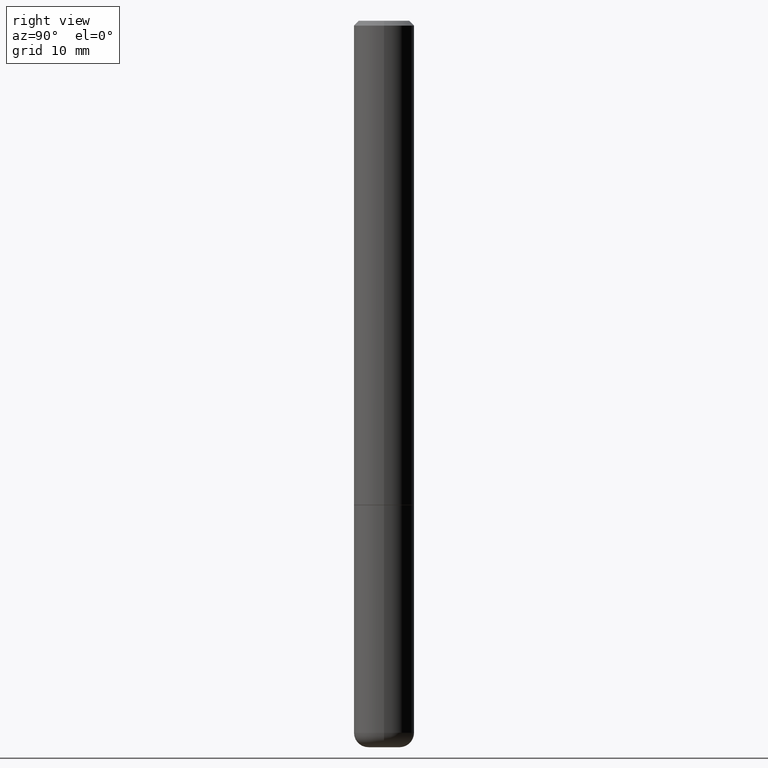
[diagram: clean part render]
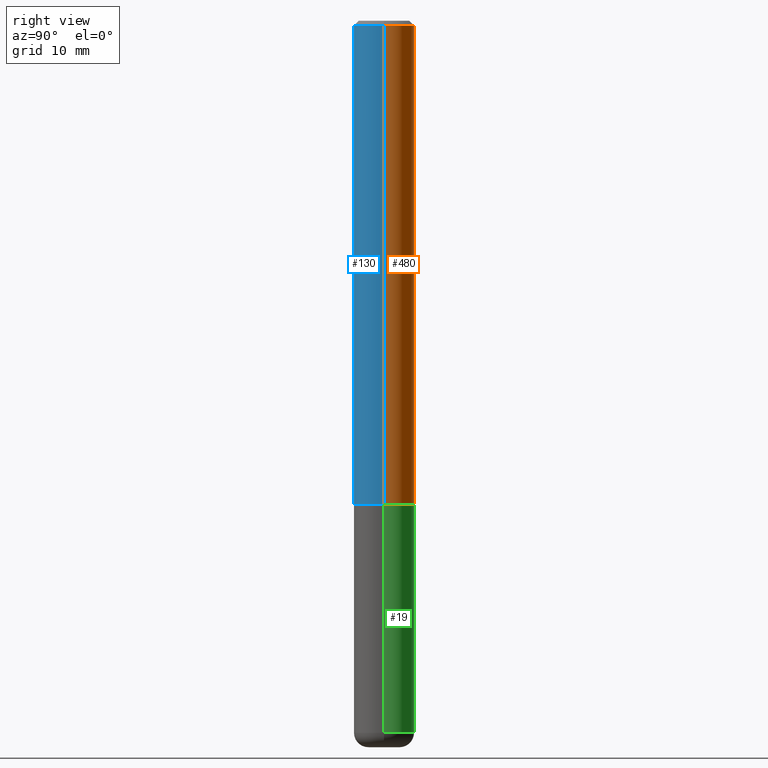
[diagram: same view with three faces highlighted in distinct colors, each labeled with its STEP entity id]
A machine part, right view with three faces highlighted in distinct colors.
Their STEP definitions:

[orange] entity #480 — the highlighted cylindrical surface (edge-blend (fillet) strip) has radius 3.175 mm, axis along (-0, 0, 1).
#12 = ORIENTED_EDGE ( 'NONE', *, *, #153, .F. ) ;
#68 = DIRECTION ( 'NONE',  ( -2.445468806185136597E-29, 3.491481338843145583E-15, 1.000000000000000000 ) ) ;
#96 = ORIENTED_EDGE ( 'NONE', *, *, #380, .T. ) ;
#97 = CARTESIAN_POINT ( 'NONE',  ( -0.1250000000000000278, -2.636471991862020635E-15, -1.999000000000000110 ) ) ;
#104 = FACE_OUTER_BOUND ( 'NONE', #243, .T. ) ;
#124 = CARTESIAN_POINT ( 'NONE',  ( 0.1249999999999993477, -9.273918764983002075E-16, -0.02000000000000009062 ) ) ;
#126 = LINE ( 'NONE', #285, #145 ) ;
#128 = CARTESIAN_POINT ( 'NONE',  ( 4.890937612370295054E-31, -6.982962677686322424E-17, -0.02000000000000009062 ) ) ;
#135 = VERTEX_POINT ( 'NONE', #346 ) ;
#140 = DIRECTION ( 'NONE',  ( 1.000000000000000000, -6.982962677686269077E-15, 0.000000000000000000 ) ) ;
#145 = VECTOR ( 'NONE', #317, 39.37007874015748143 ) ;
#153 = EDGE_CURVE ( 'NONE', #256, #296, #207, .T. ) ;
#175 = AXIS2_PLACEMENT_3D ( 'NONE', #221, #68, #140 ) ;
#207 = CIRCLE ( 'NONE', #454, 0.1249999999999993477 ) ;
#210 = VERTEX_POINT ( 'NONE', #97 ) ;
#221 = CARTESIAN_POINT ( 'NONE',  ( 4.888492143564088712E-29, -6.979471196347448158E-15, -1.999000000000000110 ) ) ;
#223 = DIRECTION ( 'NONE',  ( -2.445468806185136597E-29, 3.491481338843145583E-15, 1.000000000000000000 ) ) ;
#243 = EDGE_LOOP ( 'NONE', ( #96, #368, #12, #488 ) ) ;
#256 = VERTEX_POINT ( 'NONE', #124 ) ;
#259 = CYLINDRICAL_SURFACE ( 'NONE', #396, 0.1249999999999996947 ) ;
#261 = CARTESIAN_POINT ( 'NONE',  ( 0.000000000000000000, 0.000000000000000000, 0.000000000000000000 ) ) ;
#268 = EDGE_CURVE ( 'NONE', #210, #296, #126, .T. ) ;
#280 = DIRECTION ( 'NONE',  ( 1.000000000000000000, -6.982962677686265922E-15, 0.000000000000000000 ) ) ;
#285 = CARTESIAN_POINT ( 'NONE',  ( -0.1249999999999996947, 8.881784197001230630E-16, -6.148668862818616813E-30 ) ) ;
#296 = VERTEX_POINT ( 'NONE', #369 ) ;
#303 = LINE ( 'NONE', #489, #462 ) ;
#317 = DIRECTION ( 'NONE',  ( -2.445468806185136877E-29, 3.491481338843145188E-15, 1.000000000000000000 ) ) ;
#327 = CIRCLE ( 'NONE', #175, 0.1250000000000000278 ) ;
#346 = CARTESIAN_POINT ( 'NONE',  ( 0.1250000000000000278, -7.852341531058232286E-15, -1.999000000000000110 ) ) ;
#368 = ORIENTED_EDGE ( 'NONE', *, *, #268, .T. ) ;
#369 = CARTESIAN_POINT ( 'NONE',  ( -0.1249999999999993477, 8.030407079339155047E-16, -0.02000000000000009062 ) ) ;
#376 = DIRECTION ( 'NONE',  ( 1.000000000000000000, -6.982962677686266711E-15, 4.876176775795935793E-29 ) ) ;
#380 = EDGE_CURVE ( 'NONE', #135, #210, #327, .T. ) ;
#396 = AXIS2_PLACEMENT_3D ( 'NONE', #261, #223, #376 ) ;
#399 = DIRECTION ( 'NONE',  ( -2.445468806185136597E-29, 3.491481338843145583E-15, 1.000000000000000000 ) ) ;
#454 = AXIS2_PLACEMENT_3D ( 'NONE', #128, #399, #280 ) ;
#458 = EDGE_CURVE ( 'NONE', #135, #256, #303, .T. ) ;
#459 = DIRECTION ( 'NONE',  ( -2.445468806185136877E-29, 3.491481338843145188E-15, 1.000000000000000000 ) ) ;
#462 = VECTOR ( 'NONE', #459, 39.37007874015748143 ) ;
#480 = ADVANCED_FACE ( 'NONE', ( #104 ), #259, .T. ) ;
#488 = ORIENTED_EDGE ( 'NONE', *, *, #458, .F. ) ;
#489 = CARTESIAN_POINT ( 'NONE',  ( 0.1249999999999996947, -8.728703347107811695E-16, 6.095220969744905027E-30 ) ) ;

[blue] entity #130 — the highlighted cylindrical surface (edge-blend (fillet) strip) has radius 3.175 mm, axis along (-0, 0, 1).
#2 = DIRECTION ( 'NONE',  ( -2.445468806185136597E-29, 3.491481338843145583E-15, 1.000000000000000000 ) ) ;
#14 = CARTESIAN_POINT ( 'NONE',  ( 0.000000000000000000, 0.000000000000000000, 0.000000000000000000 ) ) ;
#27 = ORIENTED_EDGE ( 'NONE', *, *, #349, .T. ) ;
#88 = FACE_OUTER_BOUND ( 'NONE', #406, .T. ) ;
#97 = CARTESIAN_POINT ( 'NONE',  ( -0.1250000000000000278, -2.636471991862020635E-15, -1.999000000000000110 ) ) ;
#101 = DIRECTION ( 'NONE',  ( -2.445468806185136597E-29, 3.491481338843145583E-15, 1.000000000000000000 ) ) ;
#124 = CARTESIAN_POINT ( 'NONE',  ( 0.1249999999999993477, -9.273918764983002075E-16, -0.02000000000000009062 ) ) ;
#126 = LINE ( 'NONE', #285, #145 ) ;
#130 = ADVANCED_FACE ( 'NONE', ( #88 ), #355, .T. ) ;
#135 = VERTEX_POINT ( 'NONE', #346 ) ;
#145 = VECTOR ( 'NONE', #317, 39.37007874015748143 ) ;
#174 = DIRECTION ( 'NONE',  ( 1.000000000000000000, -6.982962677686265922E-15, 0.000000000000000000 ) ) ;
#180 = CARTESIAN_POINT ( 'NONE',  ( 4.890937612370295054E-31, -6.982962677686322424E-17, -0.02000000000000009062 ) ) ;
#198 = ORIENTED_EDGE ( 'NONE', *, *, #381, .F. ) ;
#210 = VERTEX_POINT ( 'NONE', #97 ) ;
#256 = VERTEX_POINT ( 'NONE', #124 ) ;
#264 = AXIS2_PLACEMENT_3D ( 'NONE', #297, #101, #293 ) ;
#265 = DIRECTION ( 'NONE',  ( 1.000000000000000000, -6.982962677686266711E-15, 4.876176775795935793E-29 ) ) ;
#268 = EDGE_CURVE ( 'NONE', #210, #296, #126, .T. ) ;
#285 = CARTESIAN_POINT ( 'NONE',  ( -0.1249999999999996947, 8.881784197001230630E-16, -6.148668862818616813E-30 ) ) ;
#288 = ORIENTED_EDGE ( 'NONE', *, *, #268, .F. ) ;
#293 = DIRECTION ( 'NONE',  ( 1.000000000000000000, -6.982962677686269077E-15, 0.000000000000000000 ) ) ;
#296 = VERTEX_POINT ( 'NONE', #369 ) ;
#297 = CARTESIAN_POINT ( 'NONE',  ( 4.888492143564088712E-29, -6.979471196347448158E-15, -1.999000000000000110 ) ) ;
#303 = LINE ( 'NONE', #489, #462 ) ;
#304 = DIRECTION ( 'NONE',  ( -2.445468806185136597E-29, 3.491481338843145583E-15, 1.000000000000000000 ) ) ;
#305 = AXIS2_PLACEMENT_3D ( 'NONE', #180, #2, #174 ) ;
#317 = DIRECTION ( 'NONE',  ( -2.445468806185136877E-29, 3.491481338843145188E-15, 1.000000000000000000 ) ) ;
#346 = CARTESIAN_POINT ( 'NONE',  ( 0.1250000000000000278, -7.852341531058232286E-15, -1.999000000000000110 ) ) ;
#349 = EDGE_CURVE ( 'NONE', #210, #135, #468, .T. ) ;
#355 = CYLINDRICAL_SURFACE ( 'NONE', #377, 0.1249999999999996947 ) ;
#369 = CARTESIAN_POINT ( 'NONE',  ( -0.1249999999999993477, 8.030407079339155047E-16, -0.02000000000000009062 ) ) ;
#377 = AXIS2_PLACEMENT_3D ( 'NONE', #14, #304, #265 ) ;
#381 = EDGE_CURVE ( 'NONE', #296, #256, #461, .T. ) ;
#406 = EDGE_LOOP ( 'NONE', ( #288, #27, #452, #198 ) ) ;
#452 = ORIENTED_EDGE ( 'NONE', *, *, #458, .T. ) ;
#458 = EDGE_CURVE ( 'NONE', #135, #256, #303, .T. ) ;
#459 = DIRECTION ( 'NONE',  ( -2.445468806185136877E-29, 3.491481338843145188E-15, 1.000000000000000000 ) ) ;
#461 = CIRCLE ( 'NONE', #305, 0.1249999999999993477 ) ;
#462 = VECTOR ( 'NONE', #459, 39.37007874015748143 ) ;
#468 = CIRCLE ( 'NONE', #264, 0.1250000000000000278 ) ;
#489 = CARTESIAN_POINT ( 'NONE',  ( 0.1249999999999996947, -8.728703347107811695E-16, 6.095220969744905027E-30 ) ) ;

[green] entity #19 — the highlighted cylindrical surface (edge-blend (fillet) strip) has radius 3.175 mm, axis along (-0, 0, 1).
#7 = DIRECTION ( 'NONE',  ( -2.445468806185136877E-29, 3.491481338843145188E-15, 1.000000000000000000 ) ) ;
#8 = CARTESIAN_POINT ( 'NONE',  ( -0.1250000000000000278, 8.881784197001254296E-16, -6.148668862818634329E-30 ) ) ;
#10 = VECTOR ( 'NONE', #284, 39.37007874015748143 ) ;
#15 = VERTEX_POINT ( 'NONE', #469 ) ;
#19 = ADVANCED_FACE ( 'NONE', ( #385 ), #275, .T. ) ;
#35 = CARTESIAN_POINT ( 'NONE',  ( 0.1250000000000000278, -1.113783344760428224E-14, -2.940002284616149097 ) ) ;
#44 = DIRECTION ( 'NONE',  ( -2.445468806185136597E-29, 3.491481338843145583E-15, 1.000000000000000000 ) ) ;
#55 = EDGE_CURVE ( 'NONE', #370, #408, #443, .T. ) ;
#56 = DIRECTION ( 'NONE',  ( 1.000000000000000000, -6.982962677686269077E-15, 0.000000000000000000 ) ) ;
#65 = DIRECTION ( 'NONE',  ( -2.445468806185136597E-29, 3.491481338843145583E-15, 1.000000000000000000 ) ) ;
#115 = DIRECTION ( 'NONE',  ( 1.000000000000000000, -6.982962677686267499E-15, 4.876176775795935793E-29 ) ) ;
#120 = EDGE_LOOP ( 'NONE', ( #356, #445, #403, #331 ) ) ;
#122 = AXIS2_PLACEMENT_3D ( 'NONE', #425, #238, #392 ) ;
#159 = LINE ( 'NONE', #244, #10 ) ;
#214 = VERTEX_POINT ( 'NONE', #249 ) ;
#222 = CARTESIAN_POINT ( 'NONE',  ( -0.1250000000000000278, -7.735784475589770982E-15, -2.940002284616149097 ) ) ;
#231 = LINE ( 'NONE', #8, #470 ) ;
#236 = CARTESIAN_POINT ( 'NONE',  ( 0.000000000000000000, 0.000000000000000000, 0.000000000000000000 ) ) ;
#238 = DIRECTION ( 'NONE',  ( -2.445468806185136597E-29, 3.491481338843145583E-15, 1.000000000000000000 ) ) ;
#244 = CARTESIAN_POINT ( 'NONE',  ( 0.1250000000000000278, -8.728703347107836346E-16, 6.095220969744921142E-30 ) ) ;
#247 = AXIS2_PLACEMENT_3D ( 'NONE', #236, #44, #115 ) ;
#249 = CARTESIAN_POINT ( 'NONE',  ( 0.1250000000000000278, -7.855833012397075293E-15, -2.000000000000000444 ) ) ;
#255 = EDGE_CURVE ( 'NONE', #214, #15, #444, .T. ) ;
#257 = EDGE_CURVE ( 'NONE', #370, #214, #159, .T. ) ;
#275 = CYLINDRICAL_SURFACE ( 'NONE', #247, 0.1250000000000000278 ) ;
#284 = DIRECTION ( 'NONE',  ( -2.445468806185136877E-29, 3.491481338843145188E-15, 1.000000000000000000 ) ) ;
#331 = ORIENTED_EDGE ( 'NONE', *, *, #257, .F. ) ;
#356 = ORIENTED_EDGE ( 'NONE', *, *, #55, .T. ) ;
#360 = AXIS2_PLACEMENT_3D ( 'NONE', #474, #65, #56 ) ;
#370 = VERTEX_POINT ( 'NONE', #35 ) ;
#385 = FACE_OUTER_BOUND ( 'NONE', #120, .T. ) ;
#392 = DIRECTION ( 'NONE',  ( 1.000000000000000000, -6.982962677686261189E-15, 0.000000000000000000 ) ) ;
#403 = ORIENTED_EDGE ( 'NONE', *, *, #255, .F. ) ;
#408 = VERTEX_POINT ( 'NONE', #222 ) ;
#425 = CARTESIAN_POINT ( 'NONE',  ( 7.189683877141828880E-29, -1.026496311289350047E-14, -2.940002284616149097 ) ) ;
#443 = CIRCLE ( 'NONE', #122, 0.1250000000000000278 ) ;
#444 = CIRCLE ( 'NONE', #360, 0.1250000000000000278 ) ;
#445 = ORIENTED_EDGE ( 'NONE', *, *, #487, .T. ) ;
#469 = CARTESIAN_POINT ( 'NONE',  ( -0.1250000000000000278, -7.735784475589770982E-15, -2.000000000000000444 ) ) ;
#470 = VECTOR ( 'NONE', #7, 39.37007874015748143 ) ;
#474 = CARTESIAN_POINT ( 'NONE',  ( 4.890937612370273754E-29, -6.982962677686291954E-15, -2.000000000000000444 ) ) ;
#487 = EDGE_CURVE ( 'NONE', #408, #15, #231, .T. ) ;